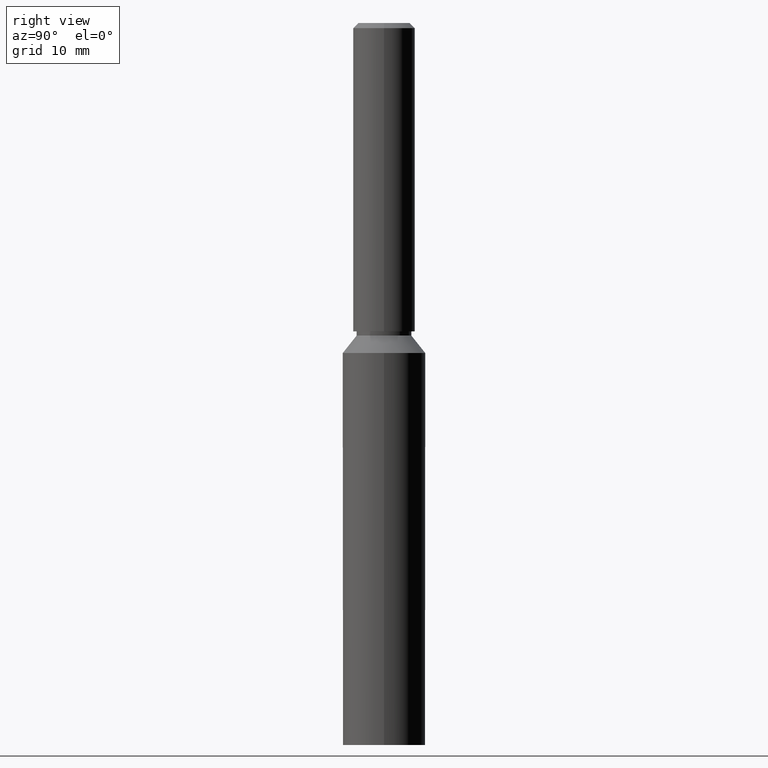
[diagram: clean part render]
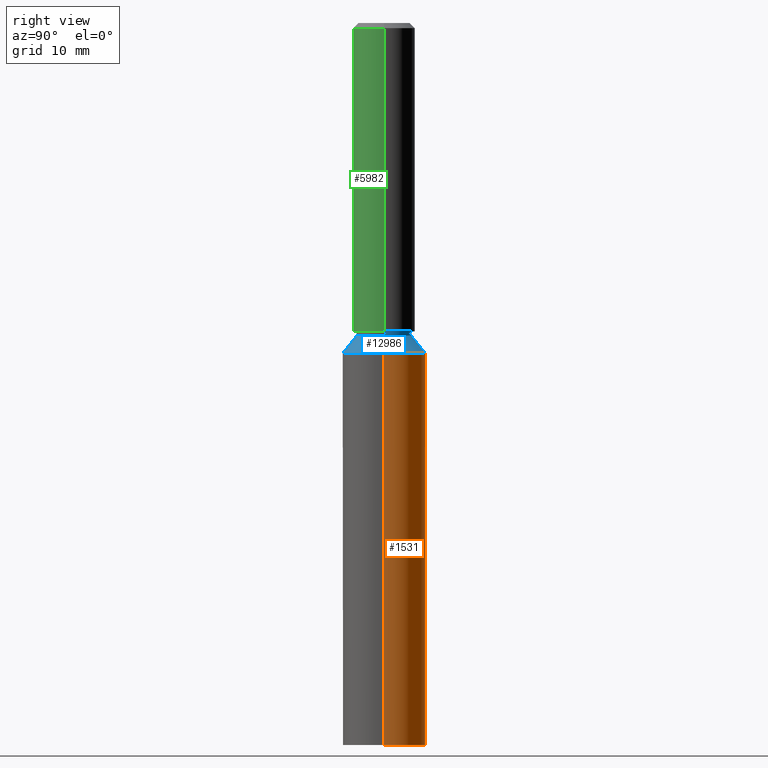
[diagram: same view with three faces highlighted in distinct colors, each labeled with its STEP entity id]
A machine part, right view with three faces highlighted in distinct colors.
Their STEP definitions:

[orange] entity #1531 — the highlighted cylindrical surface (partial cylindrical patch) has radius 4 mm, axis along (-0, -0, -1).
#96 = LINE ( 'NONE', #10532, #11823 ) ;
#280 = DIRECTION ( 'NONE',  ( -0.0000000000000000000, -0.0000000000000000000, -1.000000000000000000 ) ) ;
#457 = DIRECTION ( 'NONE',  ( -0.0000000000000000000, -0.0000000000000000000, -1.000000000000000000 ) ) ;
#901 = CARTESIAN_POINT ( 'NONE',  ( 0.0000000000000000000, 0.0000000000000000000, 0.0000000000000000000 ) ) ;
#1038 = CARTESIAN_POINT ( 'NONE',  ( 0.0000000000000000000, -7.477419753763976000E-017, 38.00000000000000000 ) ) ;
#1118 = EDGE_CURVE ( 'NONE', #5569, #11397, #10352, .T. ) ;
#1174 = DIRECTION ( 'NONE',  ( -1.000000000000000000, 0.0000000000000000000, 0.0000000000000000000 ) ) ;
#1531 = ADVANCED_FACE ( 'NONE', ( #6200 ), #5402, .T. ) ;
#1743 = CARTESIAN_POINT ( 'NONE',  ( 0.0000000000000000000, -7.477419753763976000E-017, 38.00000000000000000 ) ) ;
#2525 = AXIS2_PLACEMENT_3D ( 'NONE', #1743, #12780, #6730 ) ;
#3121 = CARTESIAN_POINT ( 'NONE',  ( 0.0000000000000000000, 4.000000000000005300, 38.00000000000000000 ) ) ;
#3149 = CARTESIAN_POINT ( 'NONE',  ( -4.000000000000000000, 0.0000000000000000000, 40.00000000000000000 ) ) ;
#3243 = ORIENTED_EDGE ( 'NONE', *, *, #7051, .T. ) ;
#3244 = DIRECTION ( 'NONE',  ( -0.0000000000000000000, -0.0000000000000000000, -1.000000000000000000 ) ) ;
#3373 = ORIENTED_EDGE ( 'NONE', *, *, #8265, .T. ) ;
#3544 = CIRCLE ( 'NONE', #2525, 4.000000000000005300 ) ;
#4713 = CIRCLE ( 'NONE', #12044, 4.000000000000000000 ) ;
#4864 = CARTESIAN_POINT ( 'NONE',  ( 0.0000000000000000000, 0.0000000000000000000, 40.00000000000000000 ) ) ;
#5322 = CARTESIAN_POINT ( 'NONE',  ( 4.000000000000000000, 4.898587196589412800E-016, 0.0000000000000000000 ) ) ;
#5402 = CYLINDRICAL_SURFACE ( 'NONE', #5822, 4.000000000000000000 ) ;
#5569 = VERTEX_POINT ( 'NONE', #12519 ) ;
#5822 = AXIS2_PLACEMENT_3D ( 'NONE', #4864, #3244, #1174 ) ;
#5856 = VERTEX_POINT ( 'NONE', #8258 ) ;
#6200 = FACE_OUTER_BOUND ( 'NONE', #6967, .T. ) ;
#6575 = VERTEX_POINT ( 'NONE', #3121 ) ;
#6730 = DIRECTION ( 'NONE',  ( 0.0000000000000000000, 1.000000000000000000, 0.0000000000000000000 ) ) ;
#6948 = ORIENTED_EDGE ( 'NONE', *, *, #1118, .F. ) ;
#6967 = EDGE_LOOP ( 'NONE', ( #9315, #8979, #3373, #3243, #6948 ) ) ;
#7039 = AXIS2_PLACEMENT_3D ( 'NONE', #1038, #13058, #11047 ) ;
#7051 = EDGE_CURVE ( 'NONE', #9381, #11397, #4713, .T. ) ;
#7723 = CARTESIAN_POINT ( 'NONE',  ( -4.000000000000000000, 0.0000000000000000000, 0.0000000000000000000 ) ) ;
#8258 = CARTESIAN_POINT ( 'NONE',  ( 4.000000000000005300, 4.898587196589420700E-016, 38.00000000000000000 ) ) ;
#8265 = EDGE_CURVE ( 'NONE', #5856, #9381, #96, .T. ) ;
#8979 = ORIENTED_EDGE ( 'NONE', *, *, #12115, .T. ) ;
#8980 = DIRECTION ( 'NONE',  ( 0.0000000000000000000, 0.0000000000000000000, 1.000000000000000000 ) ) ;
#9315 = ORIENTED_EDGE ( 'NONE', *, *, #11907, .T. ) ;
#9381 = VERTEX_POINT ( 'NONE', #5322 ) ;
#9857 = DIRECTION ( 'NONE',  ( 1.000000000000000000, 0.0000000000000000000, 0.0000000000000000000 ) ) ;
#10197 = VECTOR ( 'NONE', #280, 1000.000000000000000 ) ;
#10352 = LINE ( 'NONE', #3149, #10197 ) ;
#10532 = CARTESIAN_POINT ( 'NONE',  ( 4.000000000000000000, 4.898587196589412800E-016, 40.00000000000000000 ) ) ;
#11047 = DIRECTION ( 'NONE',  ( 0.0000000000000000000, 1.000000000000000000, 0.0000000000000000000 ) ) ;
#11397 = VERTEX_POINT ( 'NONE', #7723 ) ;
#11823 = VECTOR ( 'NONE', #457, 1000.000000000000000 ) ;
#11907 = EDGE_CURVE ( 'NONE', #5569, #6575, #12903, .T. ) ;
#12044 = AXIS2_PLACEMENT_3D ( 'NONE', #901, #8980, #9857 ) ;
#12115 = EDGE_CURVE ( 'NONE', #6575, #5856, #3544, .T. ) ;
#12519 = CARTESIAN_POINT ( 'NONE',  ( -4.000000000000005300, 9.629649721936179300E-032, 38.00000000000000000 ) ) ;
#12780 = DIRECTION ( 'NONE',  ( -0.0000000000000000000, 1.967742040464204400E-018, -1.000000000000000000 ) ) ;
#12903 = CIRCLE ( 'NONE', #7039, 4.000000000000005300 ) ;
#13058 = DIRECTION ( 'NONE',  ( -0.0000000000000000000, 1.967742040464204400E-018, -1.000000000000000000 ) ) ;

[blue] entity #12986 — the highlighted conical surface has half-angle 38.454 deg.
#1082 = DIRECTION ( 'NONE',  ( 0.0000000000000000000, 1.000000000000000000, 0.0000000000000000000 ) ) ;
#1610 = DIRECTION ( 'NONE',  ( 0.0000000000000000000, 0.6218821436015845600, -0.7831108474982950700 ) ) ;
#1743 = CARTESIAN_POINT ( 'NONE',  ( 0.0000000000000000000, -7.477419753763976000E-017, 38.00000000000000000 ) ) ;
#2075 = VECTOR ( 'NONE', #10215, 1000.000000000000200 ) ;
#2525 = AXIS2_PLACEMENT_3D ( 'NONE', #1743, #12780, #6730 ) ;
#2665 = CARTESIAN_POINT ( 'NONE',  ( 0.0000000000000000000, 2.650000000000005200, 39.70000000000000300 ) ) ;
#2880 = LINE ( 'NONE', #7650, #5236 ) ;
#3121 = CARTESIAN_POINT ( 'NONE',  ( 0.0000000000000000000, 4.000000000000005300, 38.00000000000000000 ) ) ;
#3501 = DIRECTION ( 'NONE',  ( -0.0000000000000000000, 1.967742040464204400E-018, -1.000000000000000000 ) ) ;
#3544 = CIRCLE ( 'NONE', #2525, 4.000000000000005300 ) ;
#3705 = FACE_OUTER_BOUND ( 'NONE', #10681, .T. ) ;
#3854 = ORIENTED_EDGE ( 'NONE', *, *, #4370, .F. ) ;
#4055 = DIRECTION ( 'NONE',  ( -0.0000000000000000000, 1.967742040464204400E-018, -1.000000000000000000 ) ) ;
#4370 = EDGE_CURVE ( 'NONE', #10545, #6575, #2880, .T. ) ;
#4907 = EDGE_CURVE ( 'NONE', #7473, #5155, #9502, .T. ) ;
#4987 = AXIS2_PLACEMENT_3D ( 'NONE', #9567, #3501, #10607 ) ;
#5155 = VERTEX_POINT ( 'NONE', #12549 ) ;
#5236 = VECTOR ( 'NONE', #1610, 1000.000000000000200 ) ;
#5509 = CIRCLE ( 'NONE', #7351, 2.650000000000005200 ) ;
#5578 = CIRCLE ( 'NONE', #9134, 4.000000000000005300 ) ;
#5776 = ORIENTED_EDGE ( 'NONE', *, *, #4907, .T. ) ;
#5856 = VERTEX_POINT ( 'NONE', #8258 ) ;
#5968 = ORIENTED_EDGE ( 'NONE', *, *, #12115, .F. ) ;
#6324 = ORIENTED_EDGE ( 'NONE', *, *, #10044, .F. ) ;
#6575 = VERTEX_POINT ( 'NONE', #3121 ) ;
#6730 = DIRECTION ( 'NONE',  ( 0.0000000000000000000, 1.000000000000000000, 0.0000000000000000000 ) ) ;
#7011 = CARTESIAN_POINT ( 'NONE',  ( 0.0000000000000000000, -7.811935900642893000E-017, 39.70000000000000300 ) ) ;
#7351 = AXIS2_PLACEMENT_3D ( 'NONE', #7011, #4055, #1082 ) ;
#7473 = VERTEX_POINT ( 'NONE', #7843 ) ;
#7494 = CONICAL_SURFACE ( 'NONE', #4987, 4.000000000000005300, 0.6711438354360067500 ) ;
#7650 = CARTESIAN_POINT ( 'NONE',  ( 0.0000000000000000000, 4.000000000000005300, 38.00000000000000000 ) ) ;
#7843 = CARTESIAN_POINT ( 'NONE',  ( 3.245314017740492400E-016, -2.650000000000005200, 39.70000000000000300 ) ) ;
#8138 = CARTESIAN_POINT ( 'NONE',  ( 4.898587196589419700E-016, -4.000000000000005300, 38.00000000000000000 ) ) ;
#8258 = CARTESIAN_POINT ( 'NONE',  ( 4.000000000000005300, 4.898587196589420700E-016, 38.00000000000000000 ) ) ;
#9134 = AXIS2_PLACEMENT_3D ( 'NONE', #12871, #10946, #12029 ) ;
#9502 = LINE ( 'NONE', #8138, #2075 ) ;
#9567 = CARTESIAN_POINT ( 'NONE',  ( 0.0000000000000000000, -7.477419753763976000E-017, 38.00000000000000000 ) ) ;
#10044 = EDGE_CURVE ( 'NONE', #5856, #5155, #5578, .T. ) ;
#10215 = DIRECTION ( 'NONE',  ( 7.615859766085753400E-017, -0.6218821436015845600, -0.7831108474982950700 ) ) ;
#10247 = EDGE_CURVE ( 'NONE', #10545, #7473, #5509, .T. ) ;
#10545 = VERTEX_POINT ( 'NONE', #2665 ) ;
#10607 = DIRECTION ( 'NONE',  ( 0.0000000000000000000, 1.000000000000000000, 0.0000000000000000000 ) ) ;
#10681 = EDGE_LOOP ( 'NONE', ( #11110, #5776, #6324, #5968, #3854 ) ) ;
#10946 = DIRECTION ( 'NONE',  ( -0.0000000000000000000, 1.967742040464204400E-018, -1.000000000000000000 ) ) ;
#11110 = ORIENTED_EDGE ( 'NONE', *, *, #10247, .T. ) ;
#12029 = DIRECTION ( 'NONE',  ( 0.0000000000000000000, 1.000000000000000000, 0.0000000000000000000 ) ) ;
#12115 = EDGE_CURVE ( 'NONE', #6575, #5856, #3544, .T. ) ;
#12549 = CARTESIAN_POINT ( 'NONE',  ( 4.898587196589419700E-016, -4.000000000000005300, 38.00000000000000000 ) ) ;
#12780 = DIRECTION ( 'NONE',  ( -0.0000000000000000000, 1.967742040464204400E-018, -1.000000000000000000 ) ) ;
#12871 = CARTESIAN_POINT ( 'NONE',  ( 0.0000000000000000000, -7.477419753763976000E-017, 38.00000000000000000 ) ) ;
#12986 = ADVANCED_FACE ( 'NONE', ( #3705 ), #7494, .T. ) ;

[green] entity #5982 — the highlighted cylindrical surface (edge-blend (fillet) strip) has radius 3 mm, axis along (-0, -0, -1).
#244 = CARTESIAN_POINT ( 'NONE',  ( 0.0000000000000000000, 0.0000000000000000000, 69.49999999999998600 ) ) ;
#395 = VERTEX_POINT ( 'NONE', #4186 ) ;
#414 = CARTESIAN_POINT ( 'NONE',  ( -3.000000000000000400, 0.0000000000000000000, 69.49999999999998600 ) ) ;
#451 = VECTOR ( 'NONE', #8077, 1000.000000000000000 ) ;
#939 = AXIS2_PLACEMENT_3D ( 'NONE', #244, #5288, #10280 ) ;
#1287 = DIRECTION ( 'NONE',  ( -1.000000000000000000, 0.0000000000000000000, 0.0000000000000000000 ) ) ;
#1489 = CARTESIAN_POINT ( 'NONE',  ( 3.000000000000000400, 3.673940397442060400E-016, 69.49999999999998600 ) ) ;
#2056 = FACE_OUTER_BOUND ( 'NONE', #3135, .T. ) ;
#2330 = CARTESIAN_POINT ( 'NONE',  ( 0.0000000000000000000, 0.0000000000000000000, 40.10000000000000100 ) ) ;
#2362 = CIRCLE ( 'NONE', #12894, 3.000000000000000400 ) ;
#2687 = CYLINDRICAL_SURFACE ( 'NONE', #3117, 3.000000000000000400 ) ;
#2720 = ORIENTED_EDGE ( 'NONE', *, *, #6941, .T. ) ;
#2943 = EDGE_CURVE ( 'NONE', #10431, #395, #7295, .T. ) ;
#3117 = AXIS2_PLACEMENT_3D ( 'NONE', #10380, #5294, #1287 ) ;
#3135 = EDGE_LOOP ( 'NONE', ( #11914, #4682, #2720, #6888 ) ) ;
#3292 = LINE ( 'NONE', #11202, #451 ) ;
#3400 = CIRCLE ( 'NONE', #939, 3.000000000000000400 ) ;
#3478 = VERTEX_POINT ( 'NONE', #414 ) ;
#4099 = VECTOR ( 'NONE', #4404, 1000.000000000000000 ) ;
#4186 = CARTESIAN_POINT ( 'NONE',  ( 3.000000000000000400, 3.673940397442060400E-016, 40.10000000000000100 ) ) ;
#4404 = DIRECTION ( 'NONE',  ( -0.0000000000000000000, -0.0000000000000000000, -1.000000000000000000 ) ) ;
#4682 = ORIENTED_EDGE ( 'NONE', *, *, #12334, .T. ) ;
#5288 = DIRECTION ( 'NONE',  ( 0.0000000000000000000, 0.0000000000000000000, -1.000000000000000000 ) ) ;
#5294 = DIRECTION ( 'NONE',  ( -0.0000000000000000000, -0.0000000000000000000, -1.000000000000000000 ) ) ;
#5415 = CARTESIAN_POINT ( 'NONE',  ( 3.000000000000000400, 3.673940397442060400E-016, 70.00000000000000000 ) ) ;
#5512 = DIRECTION ( 'NONE',  ( -0.0000000000000000000, 1.967742040464204400E-018, -1.000000000000000000 ) ) ;
#5982 = ADVANCED_FACE ( 'NONE', ( #2056 ), #2687, .T. ) ;
#6141 = EDGE_CURVE ( 'NONE', #395, #11160, #2362, .T. ) ;
#6888 = ORIENTED_EDGE ( 'NONE', *, *, #6141, .F. ) ;
#6941 = EDGE_CURVE ( 'NONE', #3478, #11160, #3292, .T. ) ;
#7295 = LINE ( 'NONE', #5415, #4099 ) ;
#8077 = DIRECTION ( 'NONE',  ( -0.0000000000000000000, -0.0000000000000000000, -1.000000000000000000 ) ) ;
#10280 = DIRECTION ( 'NONE',  ( 1.000000000000000000, 0.0000000000000000000, 0.0000000000000000000 ) ) ;
#10380 = CARTESIAN_POINT ( 'NONE',  ( 0.0000000000000000000, 0.0000000000000000000, 70.00000000000000000 ) ) ;
#10431 = VERTEX_POINT ( 'NONE', #1489 ) ;
#11160 = VERTEX_POINT ( 'NONE', #12924 ) ;
#11202 = CARTESIAN_POINT ( 'NONE',  ( -3.000000000000000400, 0.0000000000000000000, 70.00000000000000000 ) ) ;
#11445 = DIRECTION ( 'NONE',  ( 0.0000000000000000000, 1.000000000000000000, 0.0000000000000000000 ) ) ;
#11914 = ORIENTED_EDGE ( 'NONE', *, *, #2943, .F. ) ;
#12334 = EDGE_CURVE ( 'NONE', #10431, #3478, #3400, .T. ) ;
#12894 = AXIS2_PLACEMENT_3D ( 'NONE', #2330, #5512, #11445 ) ;
#12924 = CARTESIAN_POINT ( 'NONE',  ( -3.000000000000000400, 0.0000000000000000000, 40.10000000000000100 ) ) ;